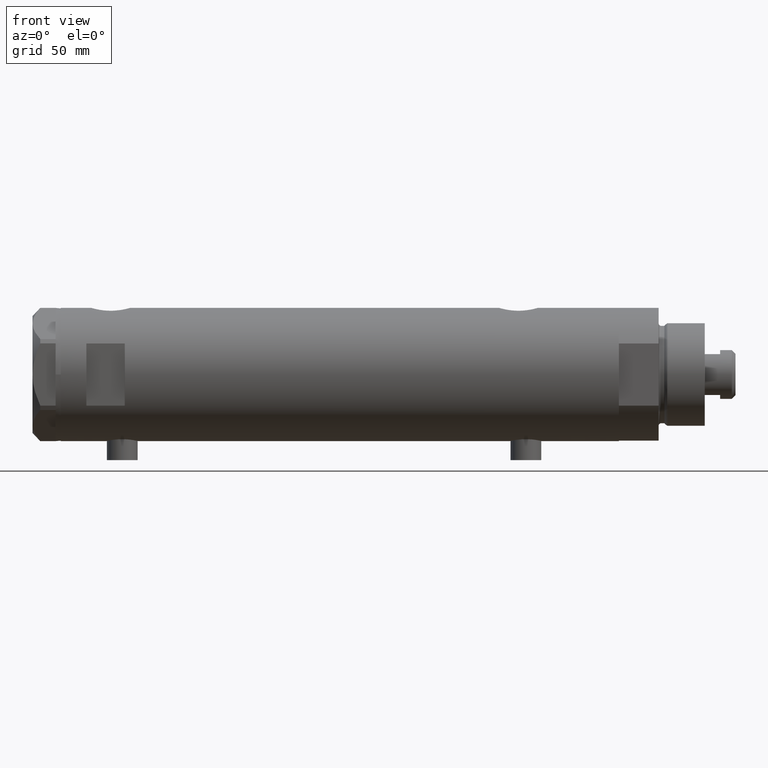
[diagram: clean part render]
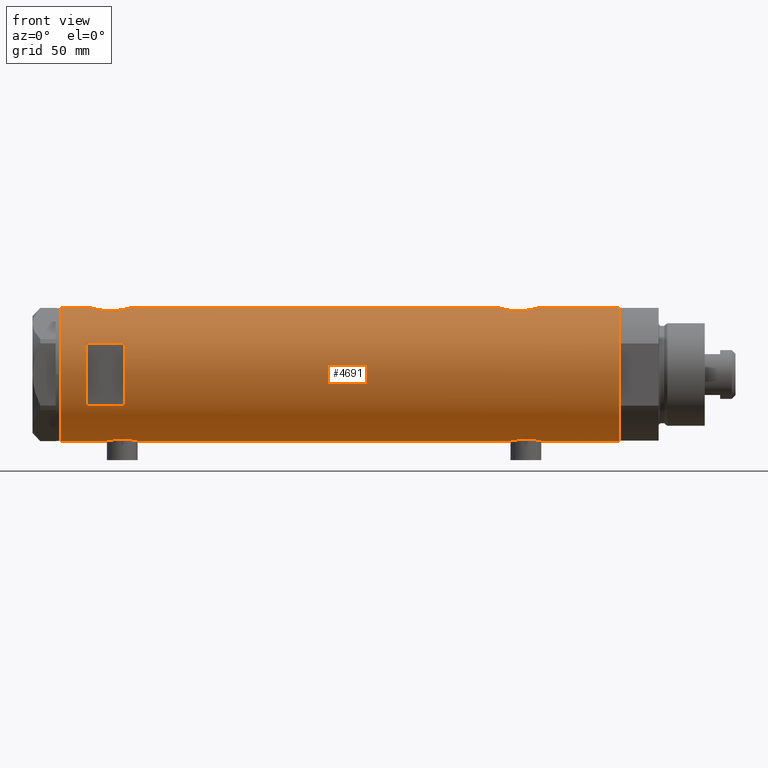
[diagram: same view with one face highlighted and labeled with its STEP entity id]
A machine part, front view. The second image highlights one B-rep face of the part: STEP entity #4691.
In plain terms, the highlighted cylindrical surface (partial cylindrical patch) has radius 26 mm, axis along (-1, -0, 0).
Its self-contained STEP definition (entity closure, byte-faithful):
#27 = CARTESIAN_POINT ( 'NONE',  ( 25.38109653984943748, -5.641393955635675361, -64.80180907551250868 ) ) ;
#32 = CARTESIAN_POINT ( 'NONE',  ( 25.59665538672497576, -4.580438224580683837, 95.40889127712392792 ) ) ;
#68 = CIRCLE ( 'NONE', #1872, 26.00000000000000355 ) ;
#74 = AXIS2_PLACEMENT_3D ( 'NONE', #2640, #360, #3467 ) ;
#75 = CARTESIAN_POINT ( 'NONE',  ( 12.12435565298214080, -23.00000000000000355, 98.95000000000001705 ) ) ;
#76 = CARTESIAN_POINT ( 'NONE',  ( 25.98599366666249111, -0.9828433289544102891, -62.29811598276526752 ) ) ;
#91 = CARTESIAN_POINT ( 'NONE',  ( -25.31551596256916525, -5.928819821281961389, -74.67011491904084153 ) ) ;
#93 = CARTESIAN_POINT ( 'NONE',  ( -12.12435565298214080, -23.00000000000000355, 98.95000000000001705 ) ) ;
#95 = CARTESIAN_POINT ( 'NONE',  ( 0.000000000000000000, 0.000000000000000000, 83.95000000000011653 ) ) ;
#105 = CARTESIAN_POINT ( 'NONE',  ( -25.31551596256916525, -5.928819821281963165, 82.92988508095918121 ) ) ;
#111 = CARTESIAN_POINT ( 'NONE',  ( -25.38662204309617465, -5.616507264474307703, -69.87800622280676066 ) ) ;
#127 = CARTESIAN_POINT ( 'NONE',  ( -25.28632996747171546, -6.050474653715410156, -71.03088129158460617 ) ) ;
#144 = CARTESIAN_POINT ( 'NONE',  ( -25.85288666140180069, -2.767917424206677524, 79.34257790010329359 ) ) ;
#163 = CARTESIAN_POINT ( 'NONE',  ( -25.38744165544136777, -5.612847683295913548, 82.17012416761524207 ) ) ;
#184 = CARTESIAN_POINT ( 'NONE',  ( -25.38662204309616399, -5.616507264474307703, 87.72199377719323365 ) ) ;
#186 = CARTESIAN_POINT ( 'NONE',  ( 25.17393786935995692, -6.507882790539431639, 85.68962666655968974 ) ) ;
#212 = CARTESIAN_POINT ( 'NONE',  ( 25.62983961939739785, -4.376509667782460866, 83.35441500957037420 ) ) ;
#242 = CARTESIAN_POINT ( 'NONE',  ( 26.00000000000000355, 0.000000000000000000, 108.9500000000000028 ) ) ;
#250 = CARTESIAN_POINT ( 'NONE',  ( 25.88994451797512397, -2.432613607265610156, -76.86140968713208110 ) ) ;
#285 = VECTOR ( 'NONE', #3466, 1000.000000000000000 ) ;
#296 = CARTESIAN_POINT ( 'NONE',  ( 25.98569226047905900, -0.9886551788957241849, -77.20082376600181817 ) ) ;
#298 = ORIENTED_EDGE ( 'NONE', *, *, #3306, .F. ) ;
#307 = CARTESIAN_POINT ( 'NONE',  ( -25.95206678899177888, -1.628763264760248353, 90.99800813330213600 ) ) ;
#360 = DIRECTION ( 'NONE',  ( 0.000000000000000000, 0.000000000000000000, 1.000000000000000000 ) ) ;
#378 = AXIS2_PLACEMENT_3D ( 'NONE', #636, #1814, #4739 ) ;
#388 = CARTESIAN_POINT ( 'NONE',  ( 25.52567976009756734, -4.956266804246113544, -64.09980072540906804 ) ) ;
#394 = EDGE_LOOP ( 'NONE', ( #298, #3512, #872, #2973, #2335, #601, #4198, #2529, #4144, #4520, #2080, #2564 ) ) ;
#407 = DIRECTION ( 'NONE',  ( 1.000000000000000000, 0.000000000000000000, 0.000000000000000000 ) ) ;
#428 = CARTESIAN_POINT ( 'NONE',  ( -25.95218276861526974, -1.627663810194430960, -78.69850980387604977 ) ) ;
#438 = CARTESIAN_POINT ( 'NONE',  ( 25.17510548814052029, -6.503212750695466227, -65.98238212184648432 ) ) ;
#442 = CARTESIAN_POINT ( 'NONE',  ( 26.00000000000000355, -3.975028449552882818E-20, -62.24999999999999289 ) ) ;
#453 = CARTESIAN_POINT ( 'NONE',  ( -25.67167563980648382, -4.129238867693852733, -77.35934056431106853 ) ) ;
#468 = LINE ( 'NONE', #3438, #285 ) ;
#483 = CARTESIAN_POINT ( 'NONE',  ( -25.23758491649665459, -6.250144606721702800, -72.23988300428190712 ) ) ;
#489 = CARTESIAN_POINT ( 'NONE',  ( 25.48871066912673911, -5.133852125086513674, -75.22290306743980182 ) ) ;
#510 = CARTESIAN_POINT ( 'NONE',  ( 26.00000000000000355, 3.155021778966484351E-16, -77.25000000000001421 ) ) ;
#562 = CARTESIAN_POINT ( 'NONE',  ( 12.12435565298214080, -23.00000000000000355, 83.95000000000001705 ) ) ;
#565 = CARTESIAN_POINT ( 'NONE',  ( -25.24765475072630139, -6.209883762780004091, 85.76678184355100143 ) ) ;
#566 = CARTESIAN_POINT ( 'NONE',  ( 25.38109653984943392, -5.641393955635675361, 94.39819092448752258 ) ) ;
#573 = CARTESIAN_POINT ( 'NONE',  ( -25.74330903162725903, -3.648508829439208068, -67.57132285284200179 ) ) ;
#581 = CARTESIAN_POINT ( 'NONE',  ( 26.00000000000001066, -0.4982617809740571002, -77.25000000000004263 ) ) ;
#592 = CARTESIAN_POINT ( 'NONE',  ( -25.99036913299955742, -0.8159609457881448202, 78.73968856968109264 ) ) ;
#598 = LINE ( 'NONE', #1740, #783 ) ;
#601 = ORIENTED_EDGE ( 'NONE', *, *, #2574, .F. ) ;
#613 = CARTESIAN_POINT ( 'NONE',  ( -26.00000000000000355, 3.184081677783118585E-15, -108.9500000000000028 ) ) ;
#614 = VECTOR ( 'NONE', #814, 1000.000000000000000 ) ;
#616 = FACE_BOUND ( 'NONE', #2217, .T. ) ;
#622 = CARTESIAN_POINT ( 'NONE',  ( 25.17510548814052029, -6.503212750695476885, 93.21761787815349010 ) ) ;
#636 = CARTESIAN_POINT ( 'NONE',  ( 0.000000000000000000, 0.000000000000000000, -108.9500000000000028 ) ) ;
#690 = VECTOR ( 'NONE', #2048, 1000.000000000000000 ) ;
#713 = DIRECTION ( 'NONE',  ( 0.000000000000000000, 0.000000000000000000, 1.000000000000000000 ) ) ;
#722 = VERTEX_POINT ( 'NONE', #93 ) ;
#775 = CARTESIAN_POINT ( 'NONE',  ( 26.00000000000000355, -3.975030973907779525E-20, 96.95000000000000284 ) ) ;
#783 = VECTOR ( 'NONE', #713, 1000.000000000000000 ) ;
#814 = DIRECTION ( 'NONE',  ( 0.000000000000000000, 0.000000000000000000, 1.000000000000000000 ) ) ;
#823 = CARTESIAN_POINT ( 'NONE',  ( -25.81160981652326925, -3.129523010631804159, -78.06392973722074657 ) ) ;
#837 = CARTESIAN_POINT ( 'NONE',  ( 26.00000000000000355, 0.000000000000000000, -108.9500000000000028 ) ) ;
#863 = CARTESIAN_POINT ( 'NONE',  ( 25.30930190055638818, -5.959775463244130655, -74.32974043478030524 ) ) ;
#871 = CARTESIAN_POINT ( 'NONE',  ( 24.96970063328117462, -7.247045583599700080, -71.69719214854804079 ) ) ;
#872 = ORIENTED_EDGE ( 'NONE', *, *, #2822, .T. ) ;
#875 = CARTESIAN_POINT ( 'NONE',  ( -25.67063510297210271, -4.128418051804843003, 89.64682575271265819 ) ) ;
#897 = CARTESIAN_POINT ( 'NONE',  ( 12.12435565298214080, -23.00000000000000355, -108.9500000000000028 ) ) ;
#903 = VERTEX_POINT ( 'NONE', #4056 ) ;
#913 = CARTESIAN_POINT ( 'NONE',  ( -25.95218276861526263, -1.627663810194431404, 78.90149019612394454 ) ) ;
#916 = CARTESIAN_POINT ( 'NONE',  ( 25.88994451797511687, -2.432613607265607936, 82.33859031286796437 ) ) ;
#939 = CIRCLE ( 'NONE', #74, 26.00000000000000355 ) ;
#943 = CARTESIAN_POINT ( 'NONE',  ( 25.98569226047904834, -0.9886551788957221865, 81.99917623399818467 ) ) ;
#945 = VERTEX_POINT ( 'NONE', #442 ) ;
#968 = CARTESIAN_POINT ( 'NONE',  ( 25.93098857934040780, -1.953835360821273515, 82.19226335297440755 ) ) ;
#989 = CARTESIAN_POINT ( 'NONE',  ( 25.31004928890825667, -5.952041021437470825, 94.01980599883506784 ) ) ;
#993 = EDGE_CURVE ( 'NONE', #4077, #4357, #1632, .T. ) ;
#1015 = CIRCLE ( 'NONE', #3770, 26.00000000000000355 ) ;
#1101 = ORIENTED_EDGE ( 'NONE', *, *, #2469, .F. ) ;
#1108 = CIRCLE ( 'NONE', #378, 26.00000000000000355 ) ;
#1119 = B_SPLINE_CURVE_WITH_KNOTS ( 'NONE', 3,
 ( #1145, #1535, #76, #2684, #2309, #4563, #3775, #4197, #388, #4585, #27, #4535, #3821, #438, #1945, #1657, #3115, #3901, #1678, #3146, #1697, #2087, #1240, #4658, #871, #3943, #2363, #3565, #4632, #863, #2057, #489, #1992, #2890, #1448, #2824, #2538, #250, #4358, #296, #581, #2471 ),
 .UNSPECIFIED., .F., .F.,
 ( 4, 2, 2, 2, 2, 2, 2, 2, 2, 2, 2, 2, 2, 2, 2, 2, 2, 2, 2, 2, 4 ),
 ( 0.02357432247332888822, 0.02504731828495722692, 0.02652031409658556910, 0.02799330990821390780, 0.02946630571984224650, 0.03020280362565641585, 0.03093930153147058520, 0.03241229734309895860, 0.03388529315472733200, 0.03462179106054152217, 0.03535828896635570540, 0.03683128477798407879, 0.03756778268379826896, 0.03830428058961245219, 0.03977727640124082559, 0.04125027221286919898, 0.04198677011868337527, 0.04272326802449755156, 0.04419626383612587639, 0.04566925964775419428, 0.04714225545938251910 ),
 .UNSPECIFIED. ) ;
#1145 = CARTESIAN_POINT ( 'NONE',  ( 26.00000000000000355, -3.975028449552882818E-20, -62.24999999999999289 ) ) ;
#1183 = CARTESIAN_POINT ( 'NONE',  ( -25.99999999999999645, -0.4086738135806038397, -78.90000000000000568 ) ) ;
#1240 = CARTESIAN_POINT ( 'NONE',  ( 24.90947356773249055, -7.451722770779349858, -70.73190841828153452 ) ) ;
#1246 = CARTESIAN_POINT ( 'NONE',  ( -25.59645788645699227, -4.565358797148518555, 89.22330529203479443 ) ) ;
#1302 = CARTESIAN_POINT ( 'NONE',  ( -26.00000000000000355, 1.227111019500118713E-15, -66.40000000000000568 ) ) ;
#1311 = CARTESIAN_POINT ( 'NONE',  ( -25.31538696791482224, -5.929326713517952818, 86.96796632208101130 ) ) ;
#1314 = CARTESIAN_POINT ( 'NONE',  ( 24.89854802586674865, -7.487520416261751244, 89.94815683577905929 ) ) ;
#1337 = CARTESIAN_POINT ( 'NONE',  ( -25.49846181844014481, -5.083495422175113632, 88.59177503382598218 ) ) ;
#1366 = DIRECTION ( 'NONE',  ( 0.000000000000000000, 0.000000000000000000, 1.000000000000000000 ) ) ;
#1372 = CARTESIAN_POINT ( 'NONE',  ( -25.67063510297210271, -4.128418051804843003, -67.95317424728736455 ) ) ;
#1385 = CARTESIAN_POINT ( 'NONE',  ( -25.85385060263650914, -2.778671585188189574, 90.56314451304237423 ) ) ;
#1395 = CARTESIAN_POINT ( 'NONE',  ( -25.99009752186833566, -0.8230863847107360298, -66.44082928593320503 ) ) ;
#1435 = CARTESIAN_POINT ( 'NONE',  ( -25.81232680456766815, -3.137210741985116513, 90.37113657221574670 ) ) ;
#1448 = CARTESIAN_POINT ( 'NONE',  ( 25.62983961939740141, -4.376509667782460866, -75.84558499042961444 ) ) ;
#1456 = CARTESIAN_POINT ( 'NONE',  ( -25.99009752186832856, -0.8230863847107351416, 91.15917071406683192 ) ) ;
#1464 = EDGE_CURVE ( 'NONE', #4110, #3311, #3768, .T. ) ;
#1535 = CARTESIAN_POINT ( 'NONE',  ( 26.00000000000000000, -0.4910237949823181847, -62.24999999999997868 ) ) ;
#1579 = CARTESIAN_POINT ( 'NONE',  ( -25.99036913299956453, -0.8159609457881454864, -78.86031143031891588 ) ) ;
#1582 = DIRECTION ( 'NONE',  ( 0.000000000000000000, 0.000000000000000000, 1.000000000000000000 ) ) ;
#1603 = CARTESIAN_POINT ( 'NONE',  ( -25.28680988956730147, -6.048472998962280300, -74.27627694188244334 ) ) ;
#1614 = CARTESIAN_POINT ( 'NONE',  ( -25.28632996747172967, -6.050474653715409268, 86.56911870841543077 ) ) ;
#1620 = CARTESIAN_POINT ( 'NONE',  ( -25.42883439573799720, -5.424786127492319920, -69.51918542739090867 ) ) ;
#1632 = LINE ( 'NONE', #613, #2322 ) ;
#1657 = CARTESIAN_POINT ( 'NONE',  ( 25.00829008792692321, -7.115081037226479665, -67.32698996259182422 ) ) ;
#1664 = CARTESIAN_POINT ( 'NONE',  ( 24.96970063328116751, -7.247045583599700080, 87.50280785145197626 ) ) ;
#1678 = CARTESIAN_POINT ( 'NONE',  ( 24.91324908721445297, -7.438459228814674695, -68.75982500625811156 ) ) ;
#1681 = CARTESIAN_POINT ( 'NONE',  ( -25.28680988956730147, -6.048472998962280300, 83.32372305811755098 ) ) ;
#1682 = CARTESIAN_POINT ( 'NONE',  ( 25.52449676677458967, -4.953491517965892932, 83.81325508665925383 ) ) ;
#1697 = CARTESIAN_POINT ( 'NONE',  ( 24.89478872726945013, -7.499966281647711064, -69.50178149365218871 ) ) ;
#1700 = VECTOR ( 'NONE', #1582, 1000.000000000000000 ) ;
#1703 = CARTESIAN_POINT ( 'NONE',  ( 26.00000000000000355, 1.142179864233347086E-15, 81.94999999999998863 ) ) ;
#1740 = CARTESIAN_POINT ( 'NONE',  ( 26.00000000000000355, 0.000000000000000000, -108.9500000000000028 ) ) ;
#1741 = CARTESIAN_POINT ( 'NONE',  ( -25.64593536028936072, -4.278686337618961666, -68.08968397039120646 ) ) ;
#1761 = CARTESIAN_POINT ( 'NONE',  ( -26.00000000000001066, -0.4144764235405758446, -66.40000000000004832 ) ) ;
#1804 = ORIENTED_EDGE ( 'NONE', *, *, #3183, .F. ) ;
#1814 = DIRECTION ( 'NONE',  ( 0.000000000000000000, 0.000000000000000000, 1.000000000000000000 ) ) ;
#1872 = AXIS2_PLACEMENT_3D ( 'NONE', #95, #2732, #2400 ) ;
#1908 = CARTESIAN_POINT ( 'NONE',  ( 25.72873412774686841, -3.768477344985559085, 95.95287460144463410 ) ) ;
#1930 = CARTESIAN_POINT ( 'NONE',  ( 25.98599366666249466, -0.9828433289544136198, 96.90188401723477796 ) ) ;
#1933 = CARTESIAN_POINT ( 'NONE',  ( -25.87202607293667000, -2.583404329177999337, -78.34473666854512430 ) ) ;
#1945 = CARTESIAN_POINT ( 'NONE',  ( 25.11342038069226135, -6.734617143597214195, -66.41229304209502970 ) ) ;
#1957 = CARTESIAN_POINT ( 'NONE',  ( -25.52190669608695472, -4.968444991210427375, -76.46341092192484723 ) ) ;
#1980 = CARTESIAN_POINT ( 'NONE',  ( 25.93085545515512891, -1.956676574435516569, 96.70727036830268730 ) ) ;
#1986 = CARTESIAN_POINT ( 'NONE',  ( -25.24765475072630139, -6.209883762780003202, -71.83321815644899289 ) ) ;
#1992 = CARTESIAN_POINT ( 'NONE',  ( 25.52449676677458967, -4.953491517965894708, -75.38674491334074901 ) ) ;
#2002 = CARTESIAN_POINT ( 'NONE',  ( 25.89059789403177092, -2.425642437452268041, 96.56377447242302026 ) ) ;
#2039 = CARTESIAN_POINT ( 'NONE',  ( -25.81160981652327635, -3.129523010631801494, 79.53607026277927616 ) ) ;
#2048 = DIRECTION ( 'NONE',  ( 0.000000000000000000, 0.000000000000000000, 1.000000000000000000 ) ) ;
#2049 = CARTESIAN_POINT ( 'NONE',  ( -25.95206678899177533, -1.628763264760248353, -66.60199186669787252 ) ) ;
#2057 = CARTESIAN_POINT ( 'NONE',  ( 25.38125492692910967, -5.649348210287295835, -74.70694334346399046 ) ) ;
#2065 = CARTESIAN_POINT ( 'NONE',  ( -25.72076778631230098, -3.815670258243490043, 79.98312189468119016 ) ) ;
#2067 = CARTESIAN_POINT ( 'NONE',  ( 24.89475831528844907, -7.500067228253142204, 88.95662571746466085 ) ) ;
#2080 = ORIENTED_EDGE ( 'NONE', *, *, #993, .F. ) ;
#2087 = CARTESIAN_POINT ( 'NONE',  ( 24.89475831528844552, -7.500067228253141316, -70.24337428253535620 ) ) ;
#2093 = CARTESIAN_POINT ( 'NONE',  ( 24.92415241886515531, -7.401968919186696638, 90.68323537444815940 ) ) ;
#2100 = CARTESIAN_POINT ( 'NONE',  ( -25.81232680456766815, -3.137210741985112072, -67.22886342778420499 ) ) ;
#2111 = CARTESIAN_POINT ( 'NONE',  ( 0.000000000000000000, 0.000000000000000000, -108.9500000000000028 ) ) ;
#2119 = CARTESIAN_POINT ( 'NONE',  ( 25.48871066912672845, -5.133852125086512785, 83.97709693256024366 ) ) ;
#2217 = EDGE_LOOP ( 'NONE', ( #1804, #1101, #3450, #2771 ) ) ;
#2230 = B_SPLINE_CURVE_WITH_KNOTS ( 'NONE', 3,
 ( #2268, #2389, #592, #913, #3517, #3489, #144, #2039, #4661, #2065, #3188, #2411, #3925, #3473, #163, #105, #1681, #2370, #4706, #4679, #4257, #3882, #565, #1614, #1311, #184, #3568, #1337, #4346, #3091, #1246, #2717, #875, #4747, #2834, #1435, #1385, #2880, #307, #1456, #4466, #2479 ),
 .UNSPECIFIED., .F., .F.,
 ( 4, 2, 2, 2, 2, 2, 2, 2, 2, 2, 2, 2, 2, 2, 2, 2, 2, 2, 2, 2, 4 ),
 ( 0.01961238453869444676, 0.02083783025472769543, 0.02206327597076094410, 0.02267599882877755976, 0.02328872168679417543, 0.02451416740282743104, 0.02573961311886067971, 0.02696505883489393532, 0.02819050455092719093, 0.02880322740894379618, 0.02941595026696040144, 0.03064139598299361195, 0.03186684169902682245, 0.03309228741506003296, 0.03370501027307663822, 0.03431773313109324347, 0.03493045598910984872, 0.03554317884712646092, 0.03676862456315967143, 0.03799407027919288193, 0.03921951599522609938 ),
 .UNSPECIFIED. ) ;
#2231 = CARTESIAN_POINT ( 'NONE',  ( 0.000000000000000000, 0.000000000000000000, 98.95000000000001705 ) ) ;
#2259 = VERTEX_POINT ( 'NONE', #4092 ) ;
#2268 = CARTESIAN_POINT ( 'NONE',  ( -26.00000000000000355, 3.184077527313362130E-15, 78.69999999999998863 ) ) ;
#2301 = CARTESIAN_POINT ( 'NONE',  ( 26.00000000000000355, 0.000000000000000000, -108.9500000000000028 ) ) ;
#2309 = CARTESIAN_POINT ( 'NONE',  ( 25.89059789403177092, -2.425642437452270705, -62.63622552757698259 ) ) ;
#2320 = CARTESIAN_POINT ( 'NONE',  ( -25.72076778631230098, -3.815670258243491819, -77.61687810531877574 ) ) ;
#2322 = VECTOR ( 'NONE', #3514, 1000.000000000000000 ) ;
#2335 = ORIENTED_EDGE ( 'NONE', *, *, #4087, .T. ) ;
#2351 = CARTESIAN_POINT ( 'NONE',  ( -25.24022290516699130, -6.239518219915429320, -73.06597215938428747 ) ) ;
#2363 = CARTESIAN_POINT ( 'NONE',  ( 25.03461301890608937, -7.019803056070514913, -72.40183183106897502 ) ) ;
#2367 = EDGE_CURVE ( 'NONE', #3689, #4077, #2815, .T. ) ;
#2370 = CARTESIAN_POINT ( 'NONE',  ( -25.25769689814630325, -6.168504065326069430, 83.92353364703255636 ) ) ;
#2389 = CARTESIAN_POINT ( 'NONE',  ( -26.00000000000001066, -0.4086738135806035066, 78.70000000000000284 ) ) ;
#2400 = DIRECTION ( 'NONE',  ( 1.776356839400250465E-15, 1.000000000000000000, 4.803849625781927035E-15 ) ) ;
#2411 = CARTESIAN_POINT ( 'NONE',  ( -25.57228991600092272, -4.705691472451695390, 80.81660309875346115 ) ) ;
#2414 = CARTESIAN_POINT ( 'NONE',  ( 26.00000000000000000, -0.4982617809740604309, 81.94999999999998863 ) ) ;
#2418 = CARTESIAN_POINT ( 'NONE',  ( 26.00000000000000355, 0.000000000000000000, -108.9500000000000028 ) ) ;
#2448 = CARTESIAN_POINT ( 'NONE',  ( -25.71926338401909362, -3.813768894920908537, -67.69427860166180722 ) ) ;
#2461 = CARTESIAN_POINT ( 'NONE',  ( 24.96672817551787915, -7.257586026187405004, 91.40384199721297875 ) ) ;
#2469 = EDGE_CURVE ( 'NONE', #722, #2916, #3270, .T. ) ;
#2471 = CARTESIAN_POINT ( 'NONE',  ( 26.00000000000000355, 3.155021778966484351E-16, -77.25000000000001421 ) ) ;
#2479 = CARTESIAN_POINT ( 'NONE',  ( -26.00000000000000355, 1.227111019500118713E-15, 91.20000000000000284 ) ) ;
#2481 = CARTESIAN_POINT ( 'NONE',  ( 25.11243836838846377, -6.738202653785839935, 86.12043350844844269 ) ) ;
#2501 = DIRECTION ( 'NONE',  ( 1.000000000000000000, 0.000000000000000000, 0.000000000000000000 ) ) ;
#2508 = VERTEX_POINT ( 'NONE', #3398 ) ;
#2529 = ORIENTED_EDGE ( 'NONE', *, *, #4121, .F. ) ;
#2538 = CARTESIAN_POINT ( 'NONE',  ( 25.78902964777117290, -3.336582972512958101, -76.48475840457741981 ) ) ;
#2564 = ORIENTED_EDGE ( 'NONE', *, *, #2367, .F. ) ;
#2574 = EDGE_CURVE ( 'NONE', #4110, #2259, #4823, .T. ) ;
#2629 = EDGE_CURVE ( 'NONE', #3944, #2982, #3546, .T. ) ;
#2638 = VECTOR ( 'NONE', #1366, 1000.000000000000000 ) ;
#2640 = CARTESIAN_POINT ( 'NONE',  ( 0.000000000000000000, 0.000000000000000000, 108.9500000000000028 ) ) ;
#2675 = CARTESIAN_POINT ( 'NONE',  ( -26.00000000000000355, 3.184077527325983904E-15, -78.90000000000000568 ) ) ;
#2684 = CARTESIAN_POINT ( 'NONE',  ( 25.93085545515513246, -1.956676574435514349, -62.49272963169730133 ) ) ;
#2696 = CARTESIAN_POINT ( 'NONE',  ( -25.25769689814629970, -6.168504065326070318, -73.67646635296743796 ) ) ;
#2717 = CARTESIAN_POINT ( 'NONE',  ( -25.64593536028936427, -4.278686337618962554, 89.51031602960877365 ) ) ;
#2719 = CARTESIAN_POINT ( 'NONE',  ( 26.00000000000000355, -0.4910237949823202386, 96.95000000000000284 ) ) ;
#2732 = DIRECTION ( 'NONE',  ( -0.000000000000000000, -4.625929269271486900E-15, 1.000000000000000000 ) ) ;
#2749 = CARTESIAN_POINT ( 'NONE',  ( -25.85288666140181135, -2.767917424206679744, -78.25742209989670073 ) ) ;
#2763 = CARTESIAN_POINT ( 'NONE',  ( 24.90947356773249055, -7.451722770779351634, 88.46809158171845411 ) ) ;
#2768 = CARTESIAN_POINT ( 'NONE',  ( -26.00000000000000355, 3.184077527313362130E-15, 78.69999999999998863 ) ) ;
#2771 = ORIENTED_EDGE ( 'NONE', *, *, #2629, .F. ) ;
#2811 = CARTESIAN_POINT ( 'NONE',  ( 24.89478872726945369, -7.499966281647711064, 89.69821850634781413 ) ) ;
#2815 = B_SPLINE_CURVE_WITH_KNOTS ( 'NONE', 3,
 ( #2675, #1183, #1579, #428, #4595, #1933, #2749, #823, #3421, #2320, #453, #4265, #1957, #3496, #3455, #91, #1603, #2696, #4236, #2351, #3864, #483, #1986, #127, #3476, #111, #1620, #3097, #4616, #3247, #4012, #1741, #1372, #2448, #573, #2100, #3575, #4757, #2049, #1395, #1761, #3154 ),
 .UNSPECIFIED., .F., .F.,
 ( 4, 2, 2, 2, 2, 2, 2, 2, 2, 2, 2, 2, 2, 2, 2, 2, 2, 2, 2, 2, 4 ),
 ( 0.01961238453869445023, 0.02083783025472766420, 0.02206327597076088165, 0.02267599882877747997, 0.02328872168679408175, 0.02451416740282726103, 0.02573961311886044032, 0.02696505883489361960, 0.02819050455092679541, 0.02880322740894340761, 0.02941595026696001633, 0.03064139598299327888, 0.03186684169902653796, 0.03309228741505979704, 0.03370501027307643005, 0.03431773313109305612, 0.03493045598910968219, 0.03554317884712631520, 0.03676862456315957428, 0.03799407027919284030, 0.03921951599522609938 ),
 .UNSPECIFIED. ) ;
#2822 = EDGE_CURVE ( 'NONE', #4089, #3624, #3669, .T. ) ;
#2824 = CARTESIAN_POINT ( 'NONE',  ( 25.72912156655466376, -3.765948295762498788, -76.25442975399225531 ) ) ;
#2834 = CARTESIAN_POINT ( 'NONE',  ( -25.74330903162726258, -3.648508829439215617, 90.02867714715799252 ) ) ;
#2880 = CARTESIAN_POINT ( 'NONE',  ( -25.92364458890660472, -2.026637113504541343, 90.87630990691475574 ) ) ;
#2890 = CARTESIAN_POINT ( 'NONE',  ( 25.59500516383204882, -4.575229401795805728, -75.69787755065419788 ) ) ;
#2916 = VERTEX_POINT ( 'NONE', #3492 ) ;
#2964 = EDGE_CURVE ( 'NONE', #903, #4267, #468, .T. ) ;
#2973 = ORIENTED_EDGE ( 'NONE', *, *, #4205, .F. ) ;
#2982 = VERTEX_POINT ( 'NONE', #75 ) ;
#3091 = CARTESIAN_POINT ( 'NONE',  ( -25.57167894663063024, -4.701762988462085069, 89.07280450192419607 ) ) ;
#3096 = LINE ( 'NONE', #3889, #690 ) ;
#3097 = CARTESIAN_POINT ( 'NONE',  ( -25.49846181844014836, -5.083495422175115408, -69.00822496617402635 ) ) ;
#3115 = CARTESIAN_POINT ( 'NONE',  ( 24.96672817551788626, -7.257586026187406780, -67.79615800278703830 ) ) ;
#3123 = CARTESIAN_POINT ( 'NONE',  ( 25.78993643992928142, -3.329561377902412467, 96.18821560278738048 ) ) ;
#3146 = CARTESIAN_POINT ( 'NONE',  ( 24.89854802586675220, -7.487520416261751244, -69.25184316422095776 ) ) ;
#3154 = CARTESIAN_POINT ( 'NONE',  ( -26.00000000000000355, 1.227111019500118713E-15, -66.40000000000000568 ) ) ;
#3167 = CARTESIAN_POINT ( 'NONE',  ( 24.91324908721445652, -7.438459228814672919, 90.44017499374189129 ) ) ;
#3183 = EDGE_CURVE ( 'NONE', #2916, #3944, #68, .T. ) ;
#3188 = CARTESIAN_POINT ( 'NONE',  ( -25.67167563980648026, -4.129238867693847403, 80.24065943568896841 ) ) ;
#3241 = CARTESIAN_POINT ( 'NONE',  ( 24.95200646071793926, -7.307522494171290184, 87.74392435812720237 ) ) ;
#3247 = CARTESIAN_POINT ( 'NONE',  ( -25.57167894663063024, -4.701762988462084181, -68.52719549807581245 ) ) ;
#3270 = LINE ( 'NONE', #4787, #3511 ) ;
#3306 = EDGE_CURVE ( 'NONE', #2508, #3689, #3096, .T. ) ;
#3311 = VERTEX_POINT ( 'NONE', #242 ) ;
#3398 = CARTESIAN_POINT ( 'NONE',  ( -26.00000000000000355, 3.184081677783118585E-15, -108.9500000000000028 ) ) ;
#3417 = CARTESIAN_POINT ( 'NONE',  ( 25.41756773306325456, -5.475260495868988109, 94.58140873656952863 ) ) ;
#3421 = CARTESIAN_POINT ( 'NONE',  ( -25.78943824387523520, -3.306687742228915372, -77.95754138783466658 ) ) ;
#3438 = CARTESIAN_POINT ( 'NONE',  ( -26.00000000000000355, 3.184081677783118585E-15, -108.9500000000000028 ) ) ;
#3440 = CARTESIAN_POINT ( 'NONE',  ( 26.00000000000000355, -3.975030973907779525E-20, 96.95000000000000284 ) ) ;
#3450 = ORIENTED_EDGE ( 'NONE', *, *, #3468, .F. ) ;
#3455 = CARTESIAN_POINT ( 'NONE',  ( -25.38744165544136422, -5.612847683295913548, -75.42987583238478067 ) ) ;
#3466 = DIRECTION ( 'NONE',  ( 0.000000000000000000, 0.000000000000000000, 1.000000000000000000 ) ) ;
#3467 = DIRECTION ( 'NONE',  ( 1.000000000000000000, 0.000000000000000000, 0.000000000000000000 ) ) ;
#3468 = EDGE_CURVE ( 'NONE', #2982, #722, #1015, .T. ) ;
#3473 = CARTESIAN_POINT ( 'NONE',  ( -25.42977453177915592, -5.420307583276858132, 81.81187728206637644 ) ) ;
#3476 = CARTESIAN_POINT ( 'NONE',  ( -25.31538696791482224, -5.929326713517954595, -70.63203367791901144 ) ) ;
#3489 = CARTESIAN_POINT ( 'NONE',  ( -25.87202607293667000, -2.583404329177993120, 79.25526333145485580 ) ) ;
#3492 = CARTESIAN_POINT ( 'NONE',  ( -12.12435565298214080, -23.00000000000000355, 83.95000000000001705 ) ) ;
#3496 = CARTESIAN_POINT ( 'NONE',  ( -25.42977453177915592, -5.420307583276858132, -75.78812271793360367 ) ) ;
#3511 = VECTOR ( 'NONE', #4086, 1000.000000000000000 ) ;
#3512 = ORIENTED_EDGE ( 'NONE', *, *, #4273, .T. ) ;
#3514 = DIRECTION ( 'NONE',  ( 0.000000000000000000, 0.000000000000000000, 1.000000000000000000 ) ) ;
#3517 = CARTESIAN_POINT ( 'NONE',  ( -25.92425332714051933, -2.018894156999441858, 79.02103879324673130 ) ) ;
#3532 = AXIS2_PLACEMENT_3D ( 'NONE', #2111, #3662, #2501 ) ;
#3546 = LINE ( 'NONE', #897, #2638 ) ;
#3565 = CARTESIAN_POINT ( 'NONE',  ( 25.11243836838845311, -6.738202653785838159, -73.07956649155158857 ) ) ;
#3568 = CARTESIAN_POINT ( 'NONE',  ( -25.42883439573799720, -5.424786127492320809, 88.08081457260908564 ) ) ;
#3570 = CARTESIAN_POINT ( 'NONE',  ( 25.38125492692911678, -5.649348210287295835, 84.49305665653602659 ) ) ;
#3575 = CARTESIAN_POINT ( 'NONE',  ( -25.85385060263651269, -2.778671585188182025, -67.03685548695763430 ) ) ;
#3624 = VERTEX_POINT ( 'NONE', #510 ) ;
#3662 = DIRECTION ( 'NONE',  ( 0.000000000000000000, 0.000000000000000000, 1.000000000000000000 ) ) ;
#3669 = LINE ( 'NONE', #837, #614 ) ;
#3689 = VERTEX_POINT ( 'NONE', #4070 ) ;
#3768 = LINE ( 'NONE', #2301, #1700 ) ;
#3770 = AXIS2_PLACEMENT_3D ( 'NONE', #2231, #3795, #407 ) ;
#3775 = CARTESIAN_POINT ( 'NONE',  ( 25.72873412774686130, -3.768477344985557753, -63.24712539855536875 ) ) ;
#3795 = DIRECTION ( 'NONE',  ( -0.000000000000000000, 0.000000000000000000, -1.000000000000000000 ) ) ;
#3821 = CARTESIAN_POINT ( 'NONE',  ( 25.27534302296961854, -6.097250460344751488, -65.37590386902925843 ) ) ;
#3864 = CARTESIAN_POINT ( 'NONE',  ( -25.23763877699556701, -6.249927116972441965, -72.85835527665466316 ) ) ;
#3865 = EDGE_CURVE ( 'NONE', #4357, #903, #2230, .T. ) ;
#3882 = CARTESIAN_POINT ( 'NONE',  ( -25.23758491649666524, -6.250144606721703688, 85.36011699571807299 ) ) ;
#3889 = CARTESIAN_POINT ( 'NONE',  ( -26.00000000000000355, 3.184081677783118585E-15, -108.9500000000000028 ) ) ;
#3901 = CARTESIAN_POINT ( 'NONE',  ( 24.92415241886515176, -7.401968919186693086, -68.51676462555187186 ) ) ;
#3905 = CARTESIAN_POINT ( 'NONE',  ( 25.03461301890608581, -7.019803056070516689, 86.79816816893104203 ) ) ;
#3925 = CARTESIAN_POINT ( 'NONE',  ( -25.52190669608696183, -4.968444991210429151, 81.13658907807514709 ) ) ;
#3943 = CARTESIAN_POINT ( 'NONE',  ( 25.01107424167500071, -7.102941973849621782, -72.17062848662580166 ) ) ;
#3944 = VERTEX_POINT ( 'NONE', #562 ) ;
#3991 = FACE_OUTER_BOUND ( 'NONE', #394, .T. ) ;
#4004 = CARTESIAN_POINT ( 'NONE',  ( 25.11342038069227200, -6.734617143597215971, 92.78770695790494472 ) ) ;
#4012 = CARTESIAN_POINT ( 'NONE',  ( -25.59645788645699582, -4.565358797148518555, -68.37669470796522830 ) ) ;
#4041 = CARTESIAN_POINT ( 'NONE',  ( -26.00000000000000355, 3.184081677783118585E-15, 108.9500000000000028 ) ) ;
#4056 = CARTESIAN_POINT ( 'NONE',  ( -26.00000000000000355, 1.227111019500118713E-15, 91.20000000000000284 ) ) ;
#4070 = CARTESIAN_POINT ( 'NONE',  ( -26.00000000000000355, 3.184077527325983904E-15, -78.90000000000000568 ) ) ;
#4077 = VERTEX_POINT ( 'NONE', #1302 ) ;
#4086 = DIRECTION ( 'NONE',  ( -0.000000000000000000, -0.000000000000000000, -1.000000000000000000 ) ) ;
#4087 = EDGE_CURVE ( 'NONE', #945, #2259, #598, .T. ) ;
#4089 = VERTEX_POINT ( 'NONE', #2418 ) ;
#4092 = CARTESIAN_POINT ( 'NONE',  ( 26.00000000000000355, 1.142179864233347086E-15, 81.94999999999998863 ) ) ;
#4110 = VERTEX_POINT ( 'NONE', #3440 ) ;
#4121 = EDGE_CURVE ( 'NONE', #4267, #3311, #939, .T. ) ;
#4144 = ORIENTED_EDGE ( 'NONE', *, *, #2964, .F. ) ;
#4197 = CARTESIAN_POINT ( 'NONE',  ( 25.59665538672497220, -4.580438224580683837, -63.79110872287611755 ) ) ;
#4198 = ORIENTED_EDGE ( 'NONE', *, *, #1464, .T. ) ;
#4205 = EDGE_CURVE ( 'NONE', #945, #3624, #1119, .T. ) ;
#4236 = CARTESIAN_POINT ( 'NONE',  ( -25.25025691038241860, -6.198787452305312584, -73.47441165395792950 ) ) ;
#4257 = CARTESIAN_POINT ( 'NONE',  ( -25.23763877699557412, -6.249927116972443741, 84.74164472334534537 ) ) ;
#4259 = CARTESIAN_POINT ( 'NONE',  ( 25.52567976009756023, -4.956266804246118873, 95.10019927459099165 ) ) ;
#4265 = CARTESIAN_POINT ( 'NONE',  ( -25.57228991600091916, -4.705691472451703383, -76.78339690124650474 ) ) ;
#4267 = VERTEX_POINT ( 'NONE', #4041 ) ;
#4273 = EDGE_CURVE ( 'NONE', #2508, #4089, #1108, .T. ) ;
#4300 = CARTESIAN_POINT ( 'NONE',  ( 25.59500516383205593, -4.575229401795806616, 83.50212244934579076 ) ) ;
#4320 = CARTESIAN_POINT ( 'NONE',  ( 25.30930190055639528, -5.959775463244130655, 84.87025956521969761 ) ) ;
#4346 = CARTESIAN_POINT ( 'NONE',  ( -25.52274351135604746, -4.960534548086194206, 88.75751745340733123 ) ) ;
#4348 = CARTESIAN_POINT ( 'NONE',  ( 25.01107424167501492, -7.102941973849622670, 87.02937151337422961 ) ) ;
#4357 = VERTEX_POINT ( 'NONE', #2768 ) ;
#4358 = CARTESIAN_POINT ( 'NONE',  ( 25.93098857934041490, -1.953835360821270628, -77.00773664702565213 ) ) ;
#4364 = CYLINDRICAL_SURFACE ( 'NONE', #3532, 26.00000000000000355 ) ;
#4371 = CARTESIAN_POINT ( 'NONE',  ( 25.27534302296961499, -6.097250460344759482, 93.82409613097075862 ) ) ;
#4466 = CARTESIAN_POINT ( 'NONE',  ( -25.99999999999999289, -0.4144764235405741237, 91.19999999999997442 ) ) ;
#4520 = ORIENTED_EDGE ( 'NONE', *, *, #3865, .F. ) ;
#4535 = CARTESIAN_POINT ( 'NONE',  ( 25.31004928890825312, -5.952041021437469048, -65.18019400116494921 ) ) ;
#4563 = CARTESIAN_POINT ( 'NONE',  ( 25.78993643992928497, -3.329561377902416464, -63.01178439721262237 ) ) ;
#4585 = CARTESIAN_POINT ( 'NONE',  ( 25.41756773306325812, -5.475260495868981003, -64.61859126343054527 ) ) ;
#4595 = CARTESIAN_POINT ( 'NONE',  ( -25.92425332714051933, -2.018894156999447631, -78.57896120675330565 ) ) ;
#4616 = CARTESIAN_POINT ( 'NONE',  ( -25.52274351135605102, -4.960534548086195095, -68.84248254659266308 ) ) ;
#4632 = CARTESIAN_POINT ( 'NONE',  ( 25.17393786935996403, -6.507882790539431639, -73.51037333344034153 ) ) ;
#4658 = CARTESIAN_POINT ( 'NONE',  ( 24.95200646071794637, -7.307522494171291960, -71.45607564187282890 ) ) ;
#4661 = CARTESIAN_POINT ( 'NONE',  ( -25.78943824387523520, -3.306687742228914484, 79.64245861216535616 ) ) ;
#4679 = CARTESIAN_POINT ( 'NONE',  ( -25.24022290516698774, -6.239518219915429320, 84.53402784061569264 ) ) ;
#4680 = CARTESIAN_POINT ( 'NONE',  ( 25.72912156655464955, -3.765948295762494791, 82.94557024600776174 ) ) ;
#4691 = ADVANCED_FACE ( 'NONE', ( #3991, #616 ), #4364, .T. ) ;
#4706 = CARTESIAN_POINT ( 'NONE',  ( -25.25025691038242215, -6.198787452305312584, 84.12558834604206481 ) ) ;
#4730 = CARTESIAN_POINT ( 'NONE',  ( 25.00829008792690900, -7.115081037226478777, 91.87301003740817862 ) ) ;
#4739 = DIRECTION ( 'NONE',  ( 1.000000000000000000, 0.000000000000000000, 0.000000000000000000 ) ) ;
#4747 = CARTESIAN_POINT ( 'NONE',  ( -25.71926338401910073, -3.813768894920909425, 89.90572139833814447 ) ) ;
#4750 = CARTESIAN_POINT ( 'NONE',  ( 25.78902964777116225, -3.336582972512959877, 82.71524159542262566 ) ) ;
#4757 = CARTESIAN_POINT ( 'NONE',  ( -25.92364458890659407, -2.026637113504532017, -66.72369009308523857 ) ) ;
#4787 = CARTESIAN_POINT ( 'NONE',  ( -12.12435565298214080, -23.00000000000000355, -108.9500000000000028 ) ) ;
#4823 = B_SPLINE_CURVE_WITH_KNOTS ( 'NONE', 3,
 ( #775, #2719, #1930, #1980, #2002, #3123, #1908, #32, #4259, #3417, #566, #989, #4371, #622, #4004, #4730, #2461, #2093, #3167, #1314, #2811, #2067, #2763, #3241, #1664, #4348, #3905, #2481, #186, #4320, #3570, #2119, #1682, #4300, #212, #4680, #4750, #916, #968, #943, #2414, #1703 ),
 .UNSPECIFIED., .F., .F.,
 ( 4, 2, 2, 2, 2, 2, 2, 2, 2, 2, 2, 2, 2, 2, 2, 2, 2, 2, 2, 2, 4 ),
 ( 0.02357432247332889169, 0.02504731828495727897, 0.02652031409658566277, 0.02799330990821405005, 0.02946630571984243385, 0.03020280362565662749, 0.03093930153147082113, 0.03241229734309917371, 0.03388529315472752629, 0.03462179106054170258, 0.03535828896635587887, 0.03683128477798423145, 0.03756778268379840774, 0.03830428058961257709, 0.03977727640124092967, 0.04125027221286928225, 0.04198677011868344466, 0.04272326802449760708, 0.04419626383612591108, 0.04566925964775421509, 0.04714225545938251910 ),
 .UNSPECIFIED. ) ;